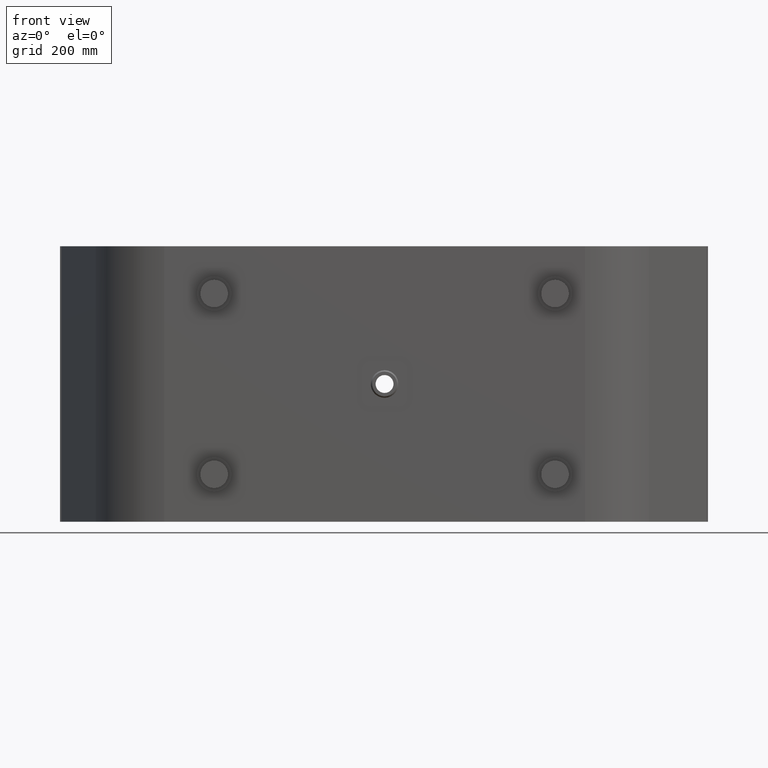
[diagram: clean part render]
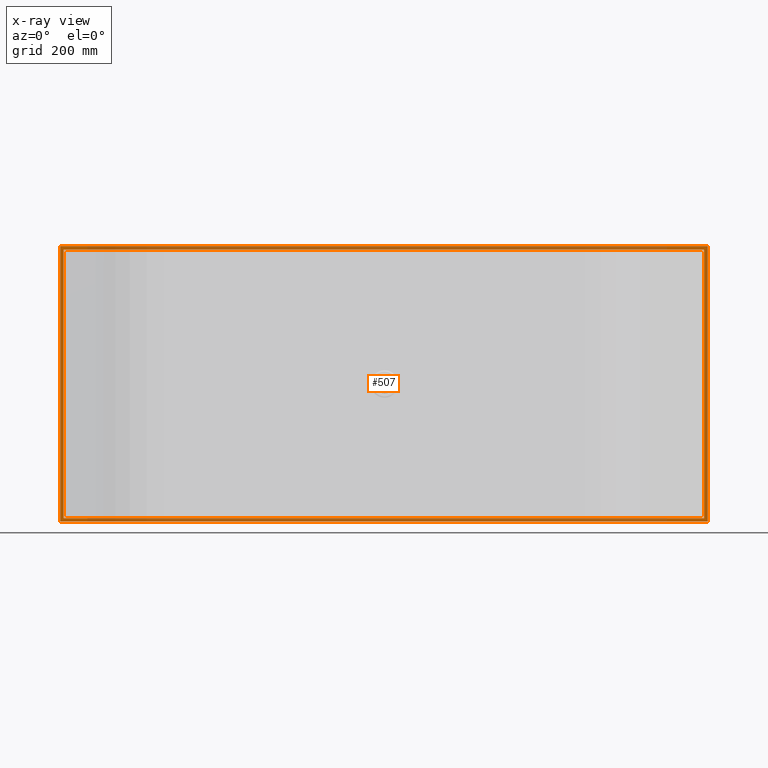
[diagram: x-ray — body ghosted, one internal face saturated and labeled with its STEP entity id]
A machine part, front view, then the same camera in x-ray: the body is ghosted and one INTERNAL B-rep face — a face not visible from any outside direction — is saturated and labeled: STEP entity #507.
In plain terms, the highlighted planar face has unit normal (-0, -1, 0).
Its self-contained STEP definition (entity closure, byte-faithful):
#5 = EDGE_CURVE ( 'NONE', #644, #411, #1737, .T. ) ;
#8 = VERTEX_POINT ( 'NONE', #1404 ) ;
#57 = CARTESIAN_POINT ( 'NONE',  ( -942.0000000000001137, -10.00000000000000000, 400.0000000000000000 ) ) ;
#145 = VECTOR ( 'NONE', #998, 1000.000000000000000 ) ;
#201 = ORIENTED_EDGE ( 'NONE', *, *, #249, .T. ) ;
#249 = EDGE_CURVE ( 'NONE', #1572, #804, #1242, .T. ) ;
#273 = EDGE_CURVE ( 'NONE', #839, #1030, #1906, .T. ) ;
#290 = VERTEX_POINT ( 'NONE', #1286 ) ;
#317 = CARTESIAN_POINT ( 'NONE',  ( 928.0000000000001137, -10.00000000000000000, -390.0000000000000000 ) ) ;
#354 = EDGE_CURVE ( 'NONE', #8, #290, #2138, .T. ) ;
#355 = ORIENTED_EDGE ( 'NONE', *, *, #1507, .T. ) ;
#394 = CARTESIAN_POINT ( 'NONE',  ( -932.0000000000001137, -10.00000000000000000, -390.0000000000000000 ) ) ;
#402 = DIRECTION ( 'NONE',  ( 1.000000000000000000, -6.841602229873534535E-19, 0.0000000000000000000 ) ) ;
#411 = VERTEX_POINT ( 'NONE', #458 ) ;
#413 = DIRECTION ( 'NONE',  ( -1.387778780781445676E-16, -0.0000000000000000000, -1.000000000000000000 ) ) ;
#458 = CARTESIAN_POINT ( 'NONE',  ( -932.0000000000001137, -10.00000000000000000, -390.0000000000000000 ) ) ;
#479 = ORIENTED_EDGE ( 'NONE', *, *, #1133, .T. ) ;
#507 = ADVANCED_FACE ( 'NONE', ( #1855, #2031 ), #713, .T. ) ;
#525 = ORIENTED_EDGE ( 'NONE', *, *, #1823, .F. ) ;
#527 = DIRECTION ( 'NONE',  ( 1.423362852083533900E-16, -1.234570477171304924E-34, 1.000000000000000000 ) ) ;
#557 = CARTESIAN_POINT ( 'NONE',  ( -942.0000000000002274, -10.00000000000000000, -400.0000000000000000 ) ) ;
#644 = VERTEX_POINT ( 'NONE', #1331 ) ;
#702 = DIRECTION ( 'NONE',  ( 1.000000000000000000, -6.841602229873534535E-19, 0.0000000000000000000 ) ) ;
#713 = PLANE ( 'NONE',  #999 ) ;
#715 = EDGE_LOOP ( 'NONE', ( #479, #201, #355, #1112 ) ) ;
#804 = VERTEX_POINT ( 'NONE', #1727 ) ;
#839 = VERTEX_POINT ( 'NONE', #557 ) ;
#873 = DIRECTION ( 'NONE',  ( -6.841602229873534535E-19, -1.000000000000000000, 9.494630401165513520E-35 ) ) ;
#903 = CARTESIAN_POINT ( 'NONE',  ( -942.0000000000002274, -10.00000000000000000, -400.0000000000000000 ) ) ;
#972 = EDGE_CURVE ( 'NONE', #290, #839, #1744, .T. ) ;
#998 = DIRECTION ( 'NONE',  ( -0.0000000000000000000, -0.0000000000000000000, -1.000000000000000000 ) ) ;
#999 = AXIS2_PLACEMENT_3D ( 'NONE', #1548, #873, #702 ) ;
#1019 = VECTOR ( 'NONE', #2174, 1000.000000000000000 ) ;
#1030 = VERTEX_POINT ( 'NONE', #57 ) ;
#1103 = DIRECTION ( 'NONE',  ( 1.000000000000000000, -6.841602229873534535E-19, 0.0000000000000000000 ) ) ;
#1112 = ORIENTED_EDGE ( 'NONE', *, *, #5, .T. ) ;
#1133 = EDGE_CURVE ( 'NONE', #411, #1572, #1359, .T. ) ;
#1138 = ORIENTED_EDGE ( 'NONE', *, *, #273, .F. ) ;
#1157 = CARTESIAN_POINT ( 'NONE',  ( -932.0000000000000000, -10.00000000000000000, 390.0000000000000000 ) ) ;
#1238 = LINE ( 'NONE', #1911, #1468 ) ;
#1242 = LINE ( 'NONE', #1770, #1608 ) ;
#1243 = VECTOR ( 'NONE', #1422, 1000.000000000000000 ) ;
#1246 = DIRECTION ( 'NONE',  ( 1.387778780781445676E-16, 0.0000000000000000000, 1.000000000000000000 ) ) ;
#1286 = CARTESIAN_POINT ( 'NONE',  ( 938.0000000000001137, -10.00000000000000000, -400.0000000000000000 ) ) ;
#1331 = CARTESIAN_POINT ( 'NONE',  ( 928.0000000000001137, -10.00000000000000000, -390.0000000000000000 ) ) ;
#1359 = LINE ( 'NONE', #2036, #1948 ) ;
#1404 = CARTESIAN_POINT ( 'NONE',  ( 938.0000000000002274, -10.00000000000000000, 400.0000000000000000 ) ) ;
#1422 = DIRECTION ( 'NONE',  ( -1.000000000000000000, 6.841602229873534535E-19, -0.0000000000000000000 ) ) ;
#1468 = VECTOR ( 'NONE', #402, 1000.000000000000000 ) ;
#1507 = EDGE_CURVE ( 'NONE', #804, #644, #1824, .T. ) ;
#1548 = CARTESIAN_POINT ( 'NONE',  ( -6.841602229873535113E-18, -10.00000000000000000, -3.605920258189456476E-66 ) ) ;
#1572 = VERTEX_POINT ( 'NONE', #1157 ) ;
#1582 = CARTESIAN_POINT ( 'NONE',  ( -942.0000000000002274, -10.00000000000000000, -400.0000000000000000 ) ) ;
#1608 = VECTOR ( 'NONE', #1103, 1000.000000000000000 ) ;
#1727 = CARTESIAN_POINT ( 'NONE',  ( 928.0000000000001137, -10.00000000000000000, 390.0000000000000000 ) ) ;
#1737 = LINE ( 'NONE', #394, #1019 ) ;
#1744 = LINE ( 'NONE', #1582, #1243 ) ;
#1770 = CARTESIAN_POINT ( 'NONE',  ( -932.0000000000000000, -10.00000000000000000, 390.0000000000000000 ) ) ;
#1818 = ORIENTED_EDGE ( 'NONE', *, *, #354, .F. ) ;
#1823 = EDGE_CURVE ( 'NONE', #1030, #8, #1238, .T. ) ;
#1824 = LINE ( 'NONE', #317, #145 ) ;
#1855 = FACE_BOUND ( 'NONE', #715, .T. ) ;
#1866 = EDGE_LOOP ( 'NONE', ( #1976, #1818, #525, #1138 ) ) ;
#1906 = LINE ( 'NONE', #903, #2183 ) ;
#1911 = CARTESIAN_POINT ( 'NONE',  ( -942.0000000000001137, -10.00000000000000000, 400.0000000000000000 ) ) ;
#1948 = VECTOR ( 'NONE', #527, 1000.000000000000000 ) ;
#1965 = VECTOR ( 'NONE', #413, 1000.000000000000000 ) ;
#1976 = ORIENTED_EDGE ( 'NONE', *, *, #972, .F. ) ;
#2031 = FACE_OUTER_BOUND ( 'NONE', #1866, .T. ) ;
#2036 = CARTESIAN_POINT ( 'NONE',  ( -932.0000000000001137, -10.00000000000000000, -390.0000000000000000 ) ) ;
#2079 = CARTESIAN_POINT ( 'NONE',  ( 938.0000000000001137, -10.00000000000000000, -400.0000000000000000 ) ) ;
#2138 = LINE ( 'NONE', #2079, #1965 ) ;
#2174 = DIRECTION ( 'NONE',  ( -1.000000000000000000, 6.841602229873535498E-19, -0.0000000000000000000 ) ) ;
#2183 = VECTOR ( 'NONE', #1246, 1000.000000000000000 ) ;